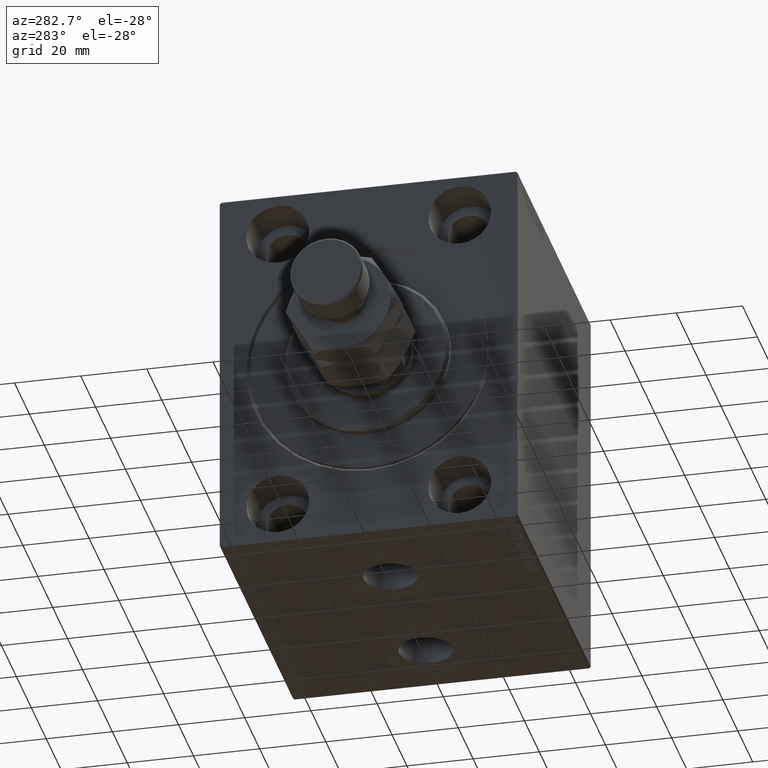
[diagram: clean part render]
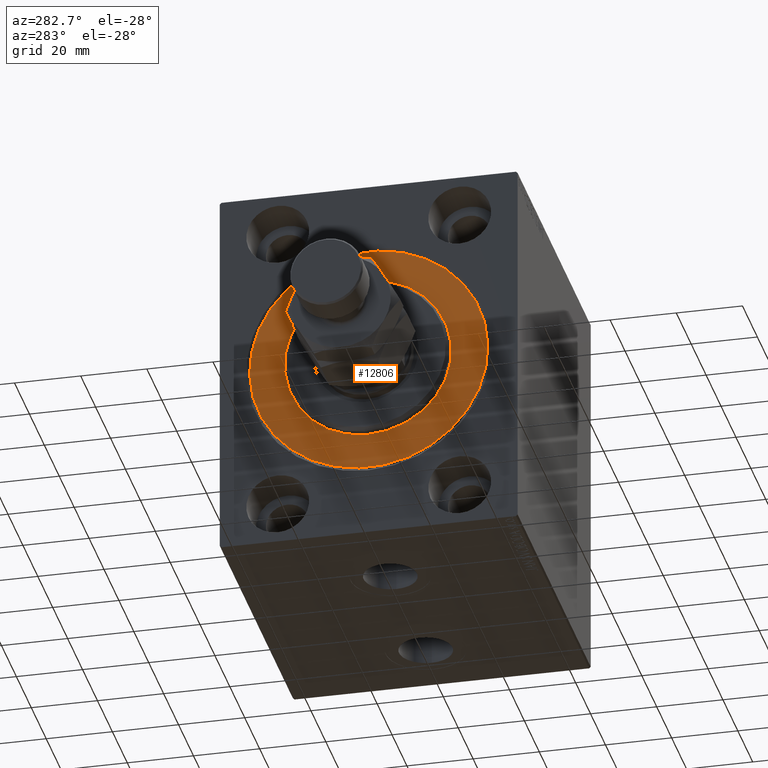
[diagram: same view with one face highlighted and labeled with its STEP entity id]
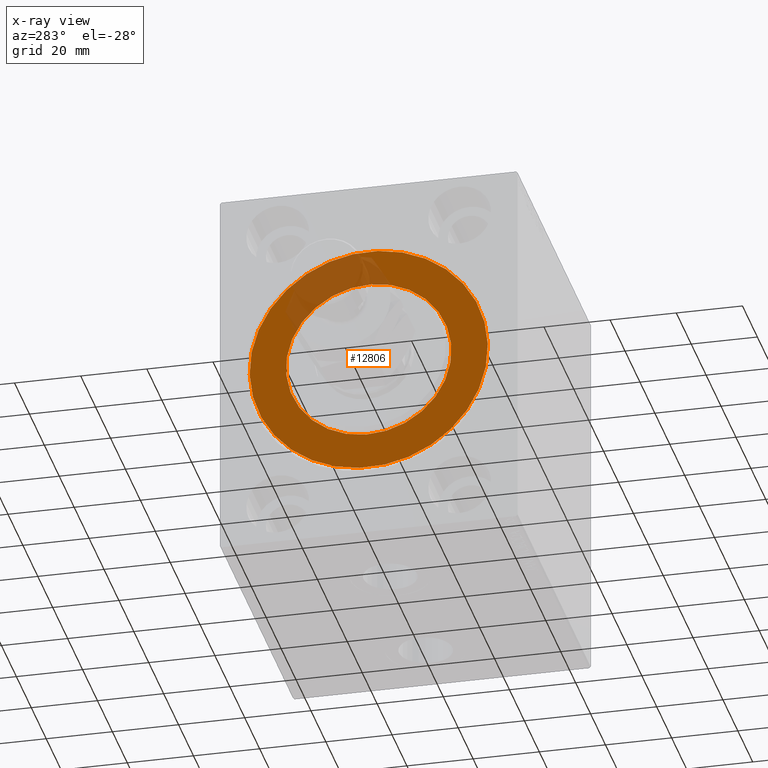
[diagram: x-ray of the same camera — body ghosted, the highlighted face saturated]
A machine part, auxiliary view. The second image highlights one B-rep face of the part: STEP entity #12806.
The next image is the same camera in x-ray: the body ghosted, the highlighted face saturated — about 16% of this face is hidden behind the body in this view.
In plain terms, the highlighted planar face has unit normal (1, 0, -0).
Its self-contained STEP definition (entity closure, byte-faithful):
#222 = CARTESIAN_POINT ( 'NONE',  ( 0.000000000000000000, 0.000000000000000000, -36.00000000000000000 ) ) ;
#858 = CIRCLE ( 'NONE', #12198, 36.00000000000000000 ) ;
#1635 = DIRECTION ( 'NONE',  ( 0.000000000000000000, 0.000000000000000000, -1.000000000000000000 ) ) ;
#2189 = EDGE_CURVE ( 'NONE', #11040, #5054, #858, .T. ) ;
#2278 = FACE_OUTER_BOUND ( 'NONE', #45975, .T. ) ;
#4606 = DIRECTION ( 'NONE',  ( -1.000000000000000000, 0.000000000000000000, 0.000000000000000000 ) ) ;
#5054 = VERTEX_POINT ( 'NONE', #6117 ) ;
#6117 = CARTESIAN_POINT ( 'NONE',  ( 0.000000000000000000, 4.408728476930470856E-15, 36.00000000000000000 ) ) ;
#8684 = AXIS2_PLACEMENT_3D ( 'NONE', #8718, #34053, #1635 ) ;
#8718 = CARTESIAN_POINT ( 'NONE',  ( 0.000000000000000000, 0.000000000000000000, 0.000000000000000000 ) ) ;
#9230 = DIRECTION ( 'NONE',  ( -1.000000000000000000, 0.000000000000000000, 0.000000000000000000 ) ) ;
#11040 = VERTEX_POINT ( 'NONE', #222 ) ;
#11219 = EDGE_CURVE ( 'NONE', #14614, #34683, #26055, .T. ) ;
#12198 = AXIS2_PLACEMENT_3D ( 'NONE', #27682, #9230, #31246 ) ;
#12806 = ADVANCED_FACE ( 'NONE', ( #27357, #2278 ), #20261, .F. ) ;
#14614 = VERTEX_POINT ( 'NONE', #40757 ) ;
#16851 = ORIENTED_EDGE ( 'NONE', *, *, #2189, .F. ) ;
#16890 = CARTESIAN_POINT ( 'NONE',  ( 0.000000000000000000, 0.000000000000000000, 0.000000000000000000 ) ) ;
#20261 = PLANE ( 'NONE',  #21895 ) ;
#21895 = AXIS2_PLACEMENT_3D ( 'NONE', #38266, #45339, #28042 ) ;
#25048 = ORIENTED_EDGE ( 'NONE', *, *, #41322, .F. ) ;
#25278 = CARTESIAN_POINT ( 'NONE',  ( 0.000000000000000000, 0.000000000000000000, 25.00000000000000000 ) ) ;
#25657 = CARTESIAN_POINT ( 'NONE',  ( 0.000000000000000000, 0.000000000000000000, 0.000000000000000000 ) ) ;
#26055 = CIRCLE ( 'NONE', #8684, 25.00000000000000000 ) ;
#26380 = CIRCLE ( 'NONE', #46774, 25.00000000000000000 ) ;
#27357 = FACE_BOUND ( 'NONE', #36377, .T. ) ;
#27682 = CARTESIAN_POINT ( 'NONE',  ( 0.000000000000000000, 0.000000000000000000, 0.000000000000000000 ) ) ;
#28042 = DIRECTION ( 'NONE',  ( 0.000000000000000000, 0.000000000000000000, 1.000000000000000000 ) ) ;
#29210 = DIRECTION ( 'NONE',  ( 0.000000000000000000, 0.000000000000000000, 1.000000000000000000 ) ) ;
#29589 = EDGE_CURVE ( 'NONE', #5054, #11040, #44927, .T. ) ;
#31246 = DIRECTION ( 'NONE',  ( 0.000000000000000000, 0.000000000000000000, 1.000000000000000000 ) ) ;
#31539 = ORIENTED_EDGE ( 'NONE', *, *, #11219, .F. ) ;
#32508 = ORIENTED_EDGE ( 'NONE', *, *, #29589, .F. ) ;
#34053 = DIRECTION ( 'NONE',  ( 1.000000000000000000, -0.000000000000000000, 0.000000000000000000 ) ) ;
#34683 = VERTEX_POINT ( 'NONE', #25278 ) ;
#36377 = EDGE_LOOP ( 'NONE', ( #25048, #31539 ) ) ;
#37752 = DIRECTION ( 'NONE',  ( 1.000000000000000000, -0.000000000000000000, 0.000000000000000000 ) ) ;
#38158 = AXIS2_PLACEMENT_3D ( 'NONE', #25657, #4606, #29210 ) ;
#38266 = CARTESIAN_POINT ( 'NONE',  ( 0.000000000000000000, 0.000000000000000000, 0.000000000000000000 ) ) ;
#38673 = DIRECTION ( 'NONE',  ( 0.000000000000000000, 0.000000000000000000, -1.000000000000000000 ) ) ;
#40757 = CARTESIAN_POINT ( 'NONE',  ( 0.000000000000000000, 3.061616997868383043E-15, -25.00000000000000000 ) ) ;
#41322 = EDGE_CURVE ( 'NONE', #34683, #14614, #26380, .T. ) ;
#44927 = CIRCLE ( 'NONE', #38158, 36.00000000000000000 ) ;
#45339 = DIRECTION ( 'NONE',  ( -1.000000000000000000, 0.000000000000000000, 0.000000000000000000 ) ) ;
#45975 = EDGE_LOOP ( 'NONE', ( #16851, #32508 ) ) ;
#46774 = AXIS2_PLACEMENT_3D ( 'NONE', #16890, #37752, #38673 ) ;